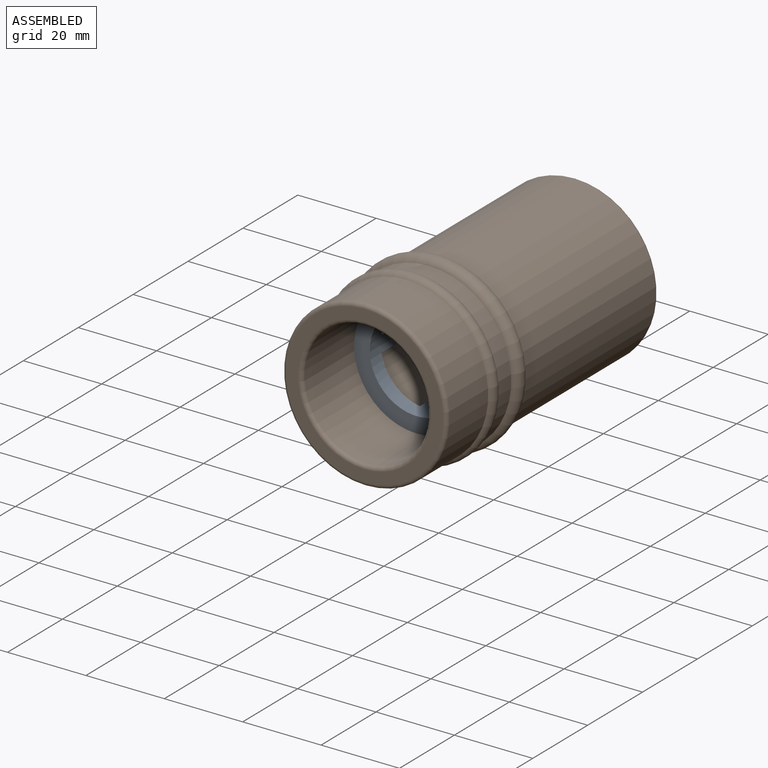
[diagram: assembled view]
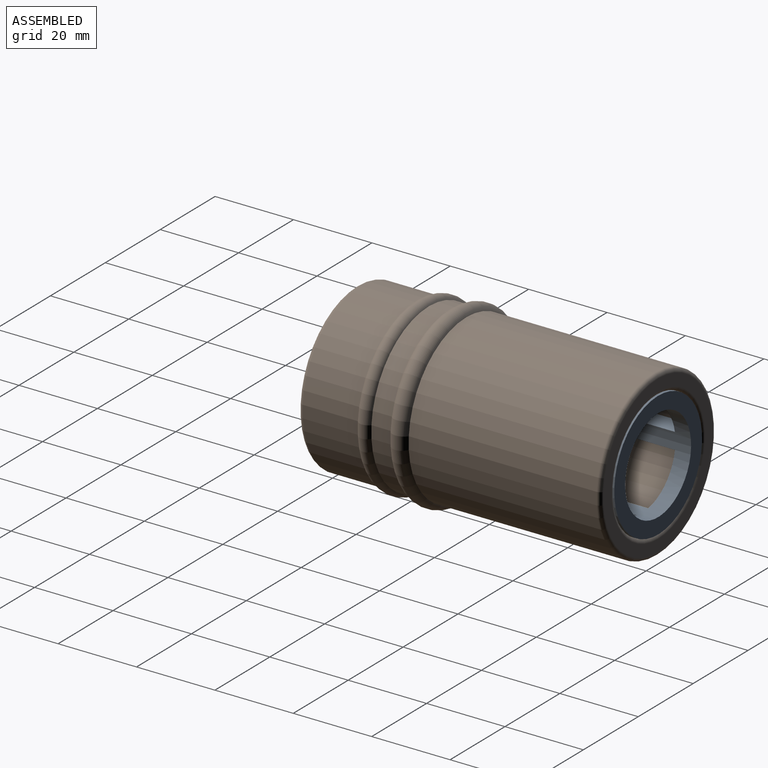
[diagram: assembled view, second angle]
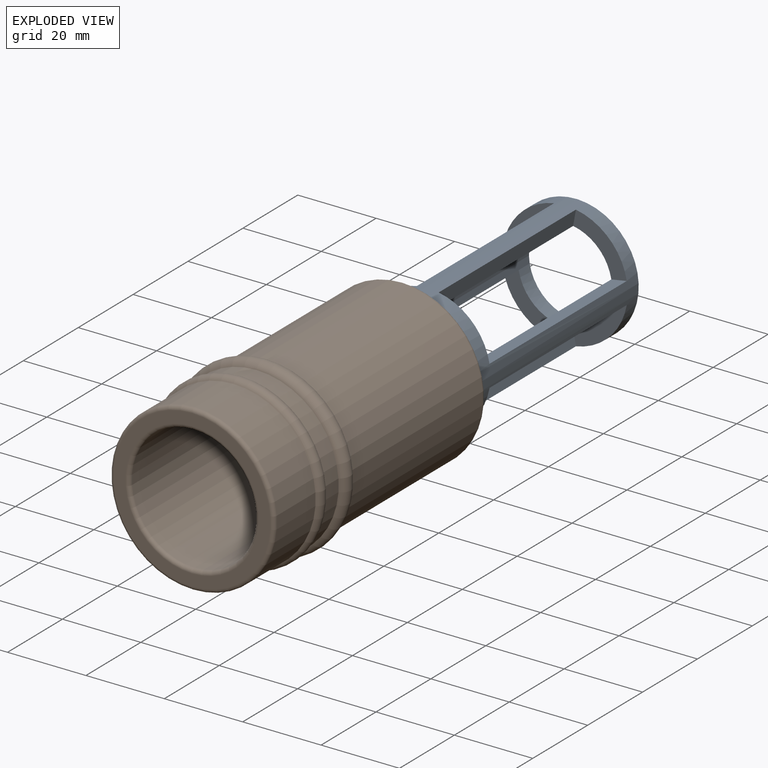
[diagram: exploded view]
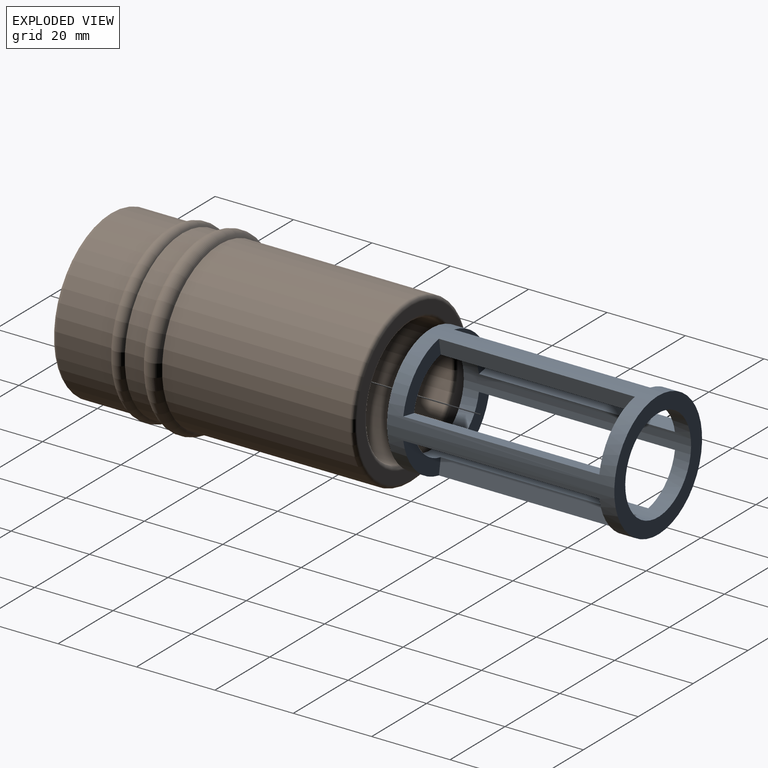
[diagram: exploded view, second angle]
ASSEMBLY  parts=2 mates=2
PART A: 20 faces, bbox 32x32x58 mm
  f0: plane 13.67x13.67mm, normal (0,0,1), area 68.4mm2, adj f4,f5,f8,f10
  f1: plane 13.67x13.67mm, normal (0,0,1), area 68.4mm2, adj f4,f5,f9,f13
  f2: plane 13.67x13.67mm, normal (0,0,1), area 68.4mm2, adj f4,f5,f11,f14
  f3: plane 13.67x13.67mm, normal (0,0,1), area 68.4mm2, adj f4,f5,f7,f12
  f4: cylinder r=12mm len=58mm, axis (0,0,-1), area 1440.9mm2, adj f0,f1,f2,f3,f6,f7,f8,f9
  f5: cylinder r=16mm len=58mm, axis (0,0,-1), area 1921.3mm2, adj f0,f1,f2,f3,f6,f7,f8,f9
  f6: plane 32x32mm, normal (0,0,-1), area 351.9mm2, adj f4,f5
  f7: plane 50x3.94mm, normal (-0.98,-0.17,0), area 200mm2, adj f3,f4,f5,f15
  f8: plane 50x3.94mm, normal (0.98,-0.17,0), area 200mm2, adj f0,f4,f5,f16
  f9: plane 50x3.94mm, normal (-0.17,-0.98,0), area 200mm2, adj f1,f4,f5,f18
  f10: plane 50x3.94mm, normal (-0.17,0.98,0), area 200mm2, adj f0,f4,f5,f16
  f11: plane 50x3.94mm, normal (0.17,-0.98,0), area 200mm2, adj f2,f4,f5,f17
  f12: plane 50x3.94mm, normal (0.17,0.98,0), area 200mm2, adj f3,f4,f5,f15
  f13: plane 50x3.94mm, normal (0.98,0.17,0), area 200mm2, adj f1,f4,f5,f18
  f14: plane 50x3.94mm, normal (-0.98,0.17,0), area 200mm2, adj f2,f4,f5,f17
  f15: plane 13.67x13.67mm, normal (0,0,-1), area 68.4mm2, adj f4,f5,f7,f12
  f16: plane 13.67x13.67mm, normal (0,0,-1), area 68.4mm2, adj f4,f5,f8,f10
  f17: plane 13.67x13.67mm, normal (0,0,-1), area 68.4mm2, adj f4,f5,f11,f14
  f18: plane 13.67x13.67mm, normal (0,0,-1), area 68.4mm2, adj f4,f5,f9,f13
  f19: plane 32x32mm, normal (0,0,1), area 351.9mm2, adj f4,f5
PART B: 12 faces, bbox 48.7x77x48.7 mm
  f0: plane 40x40mm, normal (0,-1,0), area 348.7mm2, adj f1,f11
  f1: torus R=17mm, axis (0,-1,0), area 161.5mm2, adj f0,f2
  f2: cylinder r=16mm len=75mm, axis (0,-1,0), area 7539.8mm2, adj f1,f3
  f3: torus R=17mm, axis (0,-1,0), area 161.5mm2, adj f2,f4
  f4: plane 40x40mm, normal (0,1,0), area 348.7mm2, adj f3,f5
  f5: torus R=20mm, axis (0,-1,0), area 203.7mm2, adj f4,f6
  f6: cylinder r=21mm len=47.97mm, axis (0,-1,0), area 6329.5mm2, adj f5,f7
  f7: torus R=20mm, axis (0,-1,0), area 800.4mm2, adj f6,f8
  f8: cylinder r=21mm len=42mm, axis (0,-1,0), area 651.7mm2, adj f7,f9
  f9: torus R=20mm, axis (0,-1,0), area 569.9mm2, adj f8,f10
  f10: cylinder r=21mm len=42mm, axis (0,-1,0), area 1853.1mm2, adj f9,f11
  f11: torus R=20mm, axis (0,-1,0), area 203.7mm2, adj f0,f10
PLACE A rot(axis=(-1,0,0),90deg) t=(17.88,3.6,19.16)mm
PLACE B t=(17.88,12.97,19.16)mm
MATE planar A.f5 <-> B.f1  axis (0,1,0) through (17.88,61.6,19.16)mm
MATE slider A.f5 <-> B.f1  axis (0,-1,0) through (17.88,32.6,19.16)mm
